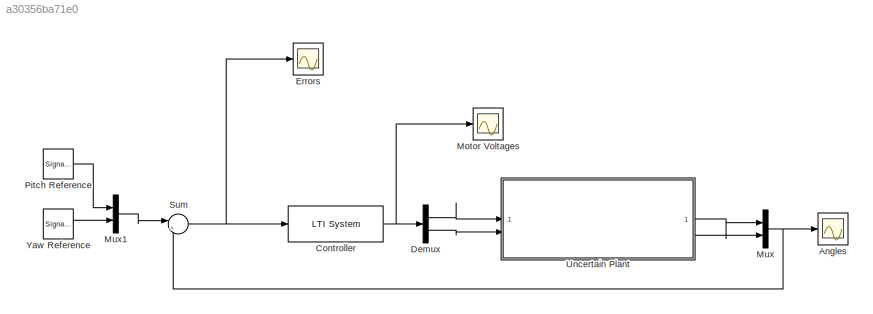
MODEL slx_a30356ba71e0
KIND model
CONFIG AbsTol = auto
CONFIG EnableMultiTasking = off
CONFIG FixedStep = auto
CONFIG MaxStep = auto
CONFIG MinStep = auto
CONFIG RelTol = 1e-3
CONFIG SampleTimeConstraint = Unconstrained
CONFIG SolverName = VariableStepAuto
CONFIG StartTime = 0.0
CONFIG StopTime = 100
BLOCK [Scope] Angles
  Floating = off
  NumInputPorts = 1
  ScopeSpecificationString = Simulink.scopes.TimeScopeBlockCfg('CurrentConfiguration', extmgr.ConfigurationSet(extmgr.Configuration('Core','General UI',true),extmgr.Configuration('Core','Source UI',true),extmgr.Configuration('Sources','WiredSimulink',true,'DataLoggingVariableName','ScopeData1'),extmgr.Configuration('Visuals','Time Domain',true,'SerializedDisplays',{struct('MinYLimReal','-1.47406','MaxYLimReal','1.47404','YLab...<+1533ch>
BLOCK [Reference] Controller  REF=cstblocks/LTI System
  SourceBlock = cstblocks/LTI System
  SourceType = LTI Block
BLOCK [Demux] Demux
  Outputs = 2
BLOCK [Scope] Errors
  Floating = off
  NumInputPorts = 1
  ScopeSpecificationString = Simulink.scopes.TimeScopeBlockCfg('CurrentConfiguration', extmgr.ConfigurationSet(extmgr.Configuration('Core','General UI',true),extmgr.Configuration('Core','Source UI',true),extmgr.Configuration('Sources','WiredSimulink',true,'DataLoggingVariableName','ScopeData2'),extmgr.Configuration('Visuals','Time Domain',true,'SerializedDisplays',{struct('MinYLimReal','-1.96373','MaxYLimReal','1.96369','YLab...<+1503ch>
BLOCK [Scope] Motor Voltages
  Floating = off
  NumInputPorts = 1
  ScopeSpecificationString = Simulink.scopes.TimeScopeBlockCfg('CurrentConfiguration', extmgr.ConfigurationSet(extmgr.Configuration('Core','General UI',true),extmgr.Configuration('Core','Source UI',true),extmgr.Configuration('Sources','WiredSimulink',true),extmgr.Configuration('Visuals','Time Domain',true,'SerializedDisplays',{struct('MinYLimReal','-290.15062','MaxYLimReal','289.72315','YLabelReal','','MinYLimMag',' 0.00000',...<+1505ch>
BLOCK [Mux] Mux
  DisplayOption = bar
  Inputs = 2
BLOCK [Mux] Mux1
  DisplayOption = bar
  Inputs = 2
BLOCK [SignalGenerator] Pitch Reference 
  Amplitude = pi/6
  Frequency = 0.02
  WaveForm = square
BLOCK [Sum] Sum
  Inputs = |+-
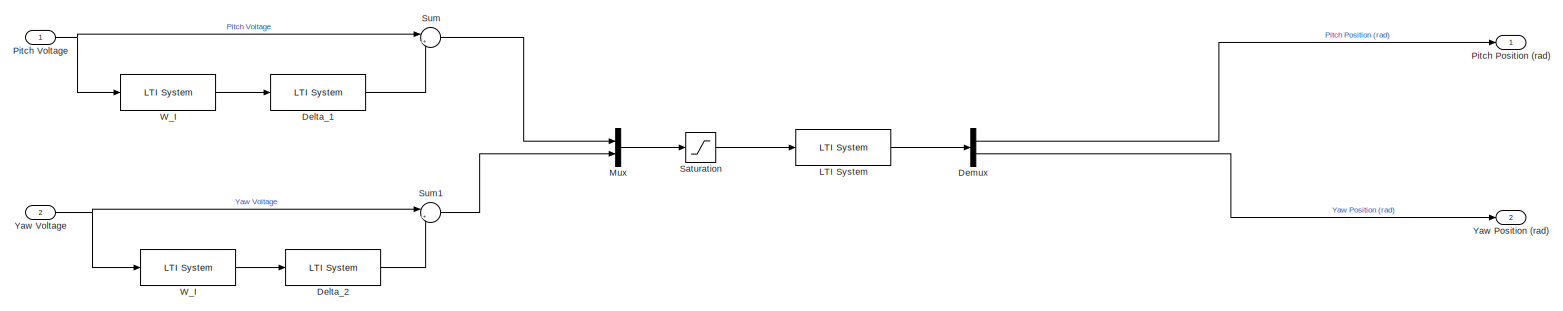
[diagram: Uncertain Plant - part 1/1, most of the canvas]
BLOCK [SubSystem] Uncertain Plant
BLOCK [Reference] Uncertain Plant/Delta_1  REF=cstblocks/LTI System
  SourceBlock = cstblocks/LTI System
  SourceType = LTI Block
BLOCK [Reference] Uncertain Plant/Delta_2  REF=cstblocks/LTI System
  SourceBlock = cstblocks/LTI System
  SourceType = LTI Block
BLOCK [Demux] Uncertain Plant/Demux
  Outputs = 2
BLOCK [Reference] Uncertain Plant/LTI System  REF=cstblocks/LTI System
  SourceBlock = cstblocks/LTI System
  SourceType = LTI Block
BLOCK [Mux] Uncertain Plant/Mux
  DisplayOption = bar
  Inputs = 2
BLOCK [Outport] Uncertain Plant/Pitch Position (rad)
BLOCK [Inport] Uncertain Plant/Pitch Voltage
BLOCK [Saturate] Uncertain Plant/Saturation
  LowerLimit = -25
  UpperLimit = 25
BLOCK [Sum] Uncertain Plant/Sum
  Inputs = |++
BLOCK [Sum] Uncertain Plant/Sum1
  Inputs = |++
BLOCK [Reference] Uncertain Plant/W_I  REF=cstblocks/LTI System
  SourceBlock = cstblocks/LTI System
  SourceType = LTI Block
BLOCK [Reference] Uncertain Plant/W_I   REF=cstblocks/LTI System
  SourceBlock = cstblocks/LTI System
  SourceType = LTI Block
BLOCK [Outport] Uncertain Plant/Yaw Position (rad)
  Port = 2
BLOCK [Inport] Uncertain Plant/Yaw Voltage
  Port = 2
BLOCK [SignalGenerator] Yaw Reference
  Amplitude = pi/4
  Frequency = 0.02
  WaveForm = square
NET Controller:1 -> Demux:1, Motor Voltages:1
LINE Demux:1 -> Uncertain Plant:1
LINE Demux:2 -> Uncertain Plant:2
LINE Mux1:1 -> Sum:1
NET Mux:1 -> Angles:1, Sum:2
LINE Pitch Reference :1 -> Mux1:1
NET Sum:1 -> Controller:1, Errors:1
LINE Uncertain Plant/Delta_1:1 -> Uncertain Plant/Sum:2
LINE Uncertain Plant/Delta_2:1 -> Uncertain Plant/Sum1:2
LINE Uncertain Plant/Demux:1 -> Uncertain Plant/Pitch Position (rad):1
LINE Uncertain Plant/Demux:2 -> Uncertain Plant/Yaw Position (rad):1
LINE Uncertain Plant/LTI System:1 -> Uncertain Plant/Demux:1
LINE Uncertain Plant/Mux:1 -> Uncertain Plant/Saturation:1
NET Uncertain Plant/Pitch Voltage:1 -> Uncertain Plant/Sum:1, Uncertain Plant/W_I:1
LINE Uncertain Plant/Saturation:1 -> Uncertain Plant/LTI System:1
LINE Uncertain Plant/Sum1:1 -> Uncertain Plant/Mux:2
LINE Uncertain Plant/Sum:1 -> Uncertain Plant/Mux:1
LINE Uncertain Plant/W_I :1 -> Uncertain Plant/Delta_2:1
LINE Uncertain Plant/W_I:1 -> Uncertain Plant/Delta_1:1
NET Uncertain Plant/Yaw Voltage:1 -> Uncertain Plant/Sum1:1, Uncertain Plant/W_I :1
LINE Uncertain Plant:1 -> Mux:1
LINE Uncertain Plant:2 -> Mux:2
LINE Yaw Reference:1 -> Mux1:2
note: NET lines group one-source signal fan-out (src -> all destinations, sorted); 1:1 wires keep LINE
